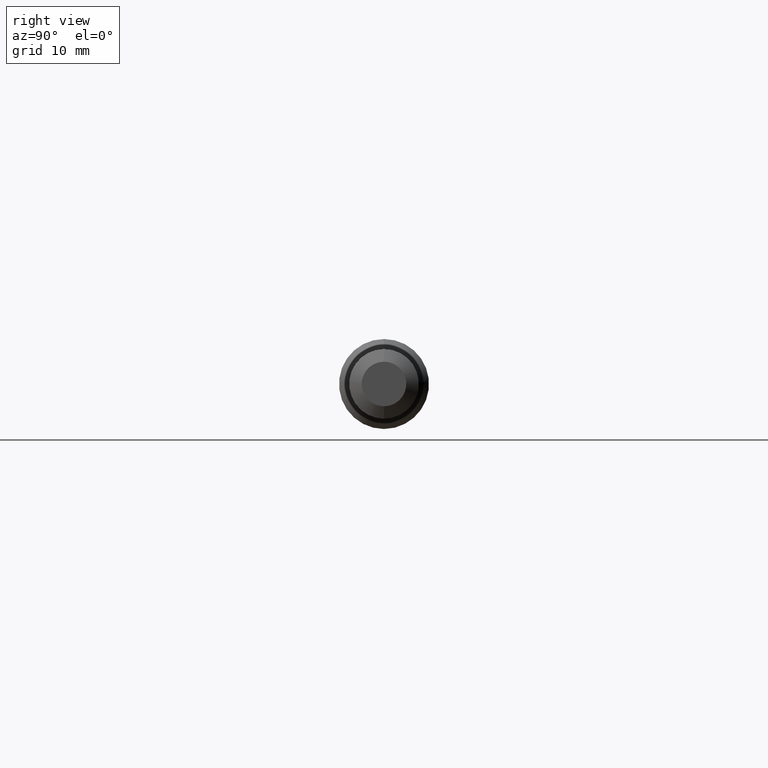
[diagram: clean part render]
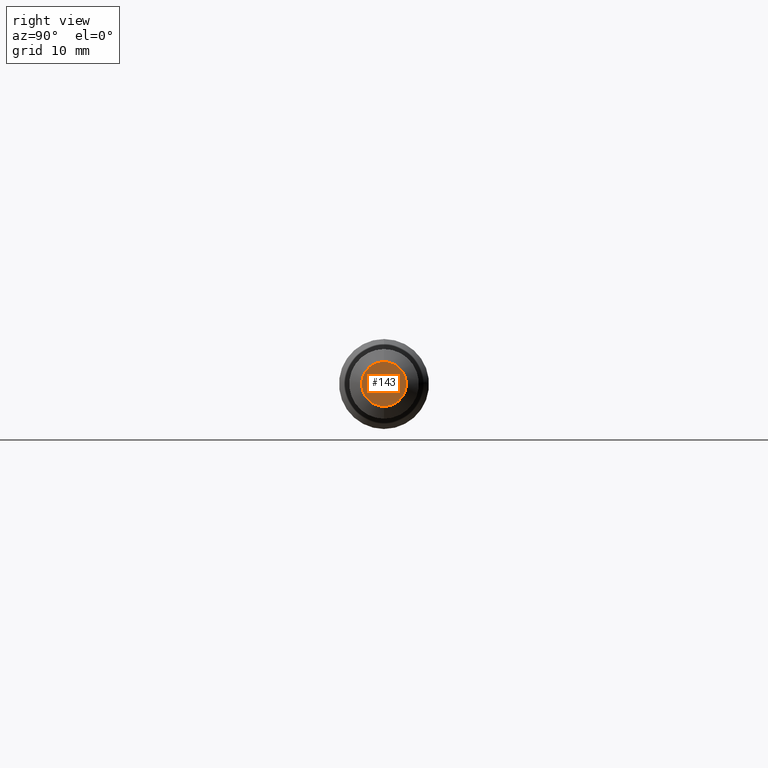
[diagram: same view with one face highlighted and labeled with its STEP entity id]
A machine part, right view. The second image highlights one B-rep face of the part: STEP entity #143.
In plain terms, the highlighted planar face has unit normal (-1, 0, -0).
Its self-contained STEP definition (entity closure, byte-faithful):
#13 = ORIENTED_EDGE ( 'NONE', *, *, #219, .F. ) ;
#47 = VERTEX_POINT ( 'NONE', #353 ) ;
#49 = CARTESIAN_POINT ( 'NONE',  ( 3.000000000000000444, 0.0000000000000000000, 0.0000000000000000000 ) ) ;
#63 = CIRCLE ( 'NONE', #91, 0.09299999999999945810 ) ;
#91 = AXIS2_PLACEMENT_3D ( 'NONE', #49, #442, #476 ) ;
#143 = ADVANCED_FACE ( 'NONE', ( #158 ), #195, .F. ) ;
#158 = FACE_OUTER_BOUND ( 'NONE', #484, .T. ) ;
#184 = AXIS2_PLACEMENT_3D ( 'NONE', #224, #230, #283 ) ;
#195 = PLANE ( 'NONE',  #312 ) ;
#219 = EDGE_CURVE ( 'NONE', #47, #501, #63, .T. ) ;
#224 = CARTESIAN_POINT ( 'NONE',  ( 3.000000000000000444, 0.0000000000000000000, 0.0000000000000000000 ) ) ;
#230 = DIRECTION ( 'NONE',  ( -1.000000000000000000, -0.0000000000000000000, -0.0000000000000000000 ) ) ;
#242 = ORIENTED_EDGE ( 'NONE', *, *, #457, .F. ) ;
#260 = CARTESIAN_POINT ( 'NONE',  ( 3.000000000000000444, 0.09299999999999945810, 0.0000000000000000000 ) ) ;
#264 = DIRECTION ( 'NONE',  ( -0.0000000000000000000, 0.0000000000000000000, 1.000000000000000000 ) ) ;
#283 = DIRECTION ( 'NONE',  ( 0.0000000000000000000, 0.0000000000000000000, 1.000000000000000000 ) ) ;
#312 = AXIS2_PLACEMENT_3D ( 'NONE', #260, #411, #264 ) ;
#330 = CIRCLE ( 'NONE', #184, 0.09299999999999945810 ) ;
#353 = CARTESIAN_POINT ( 'NONE',  ( 3.000000000000000444, 0.0000000000000000000, 0.09299999999999945810 ) ) ;
#369 = CARTESIAN_POINT ( 'NONE',  ( 3.000000000000000444, 1.457329690985343700E-17, -0.09299999999999945810 ) ) ;
#411 = DIRECTION ( 'NONE',  ( -1.000000000000000000, 0.0000000000000000000, -0.0000000000000000000 ) ) ;
#442 = DIRECTION ( 'NONE',  ( -1.000000000000000000, -0.0000000000000000000, -0.0000000000000000000 ) ) ;
#457 = EDGE_CURVE ( 'NONE', #501, #47, #330, .T. ) ;
#476 = DIRECTION ( 'NONE',  ( 0.0000000000000000000, 0.0000000000000000000, 1.000000000000000000 ) ) ;
#484 = EDGE_LOOP ( 'NONE', ( #13, #242 ) ) ;
#501 = VERTEX_POINT ( 'NONE', #369 ) ;